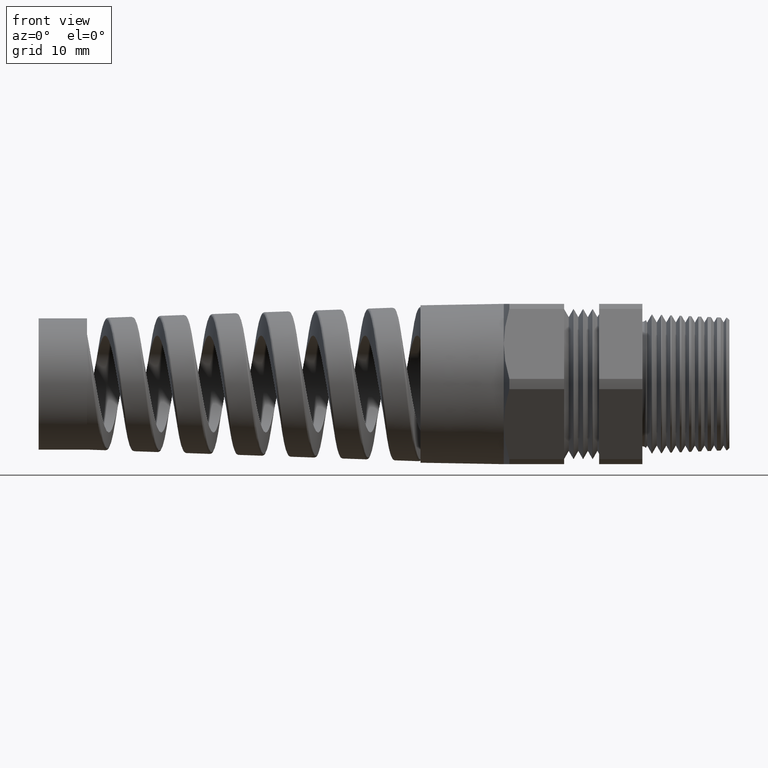
[diagram: clean part render]
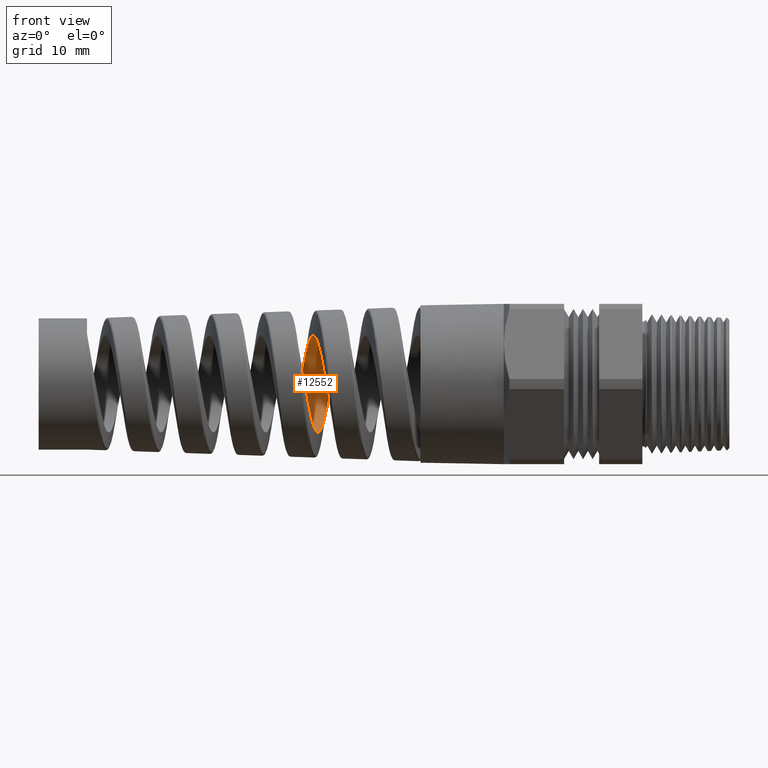
[diagram: same view with one face highlighted and labeled with its STEP entity id]
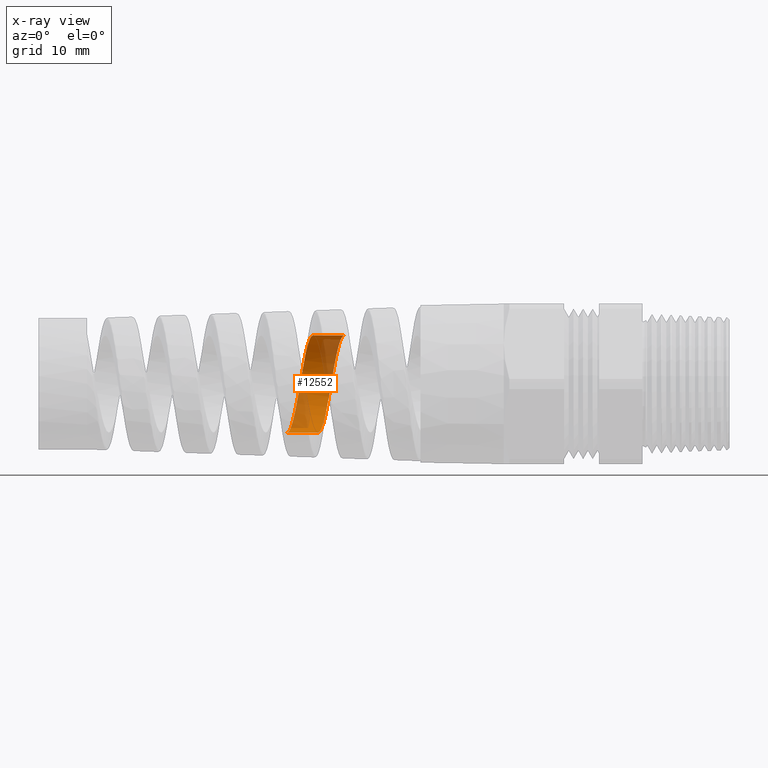
[diagram: x-ray of the same camera — body ghosted, the highlighted face saturated]
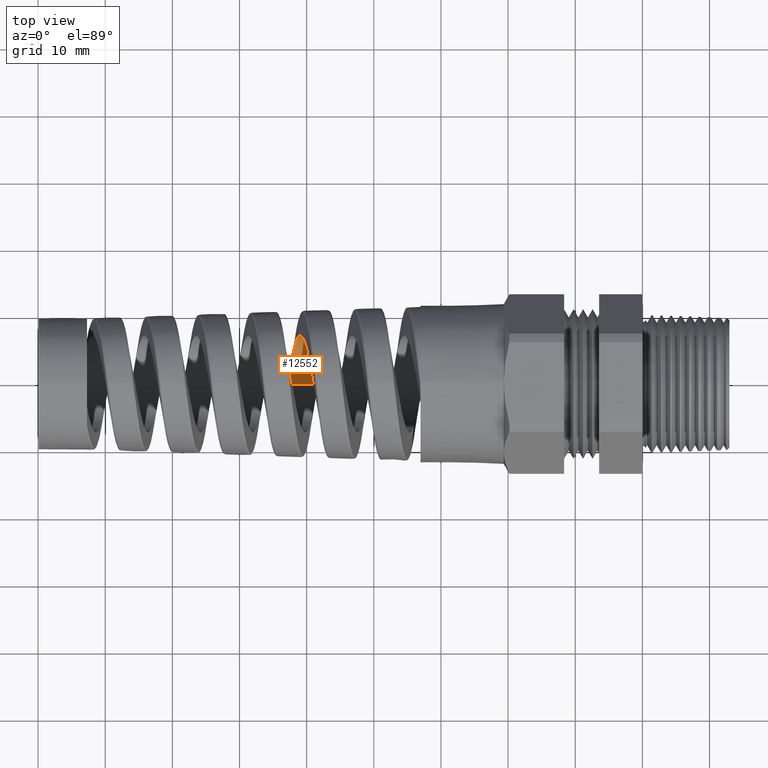
[diagram: same view with one face highlighted and labeled with its STEP entity id]
A machine part, front view. The second image highlights one B-rep face of the part: STEP entity #12552.
The next image is the same camera in x-ray: the body ghosted, the highlighted face saturated — about 39% of this face is hidden behind the body in this view.
A second angle (top view) of the same face is appended — the face is thin or edge-on in the first view.
In plain terms, the highlighted cylindrical surface (partial cylindrical patch) has radius 7.2293 mm, axis along (1, 0, 0).
Its self-contained STEP definition (entity closure, byte-faithful):
#149 = EDGE_CURVE ( 'NONE', #1259, #1275, #7874, .T. ) ;
#1256 = VERTEX_POINT ( 'NONE', #8765 ) ;
#1259 = VERTEX_POINT ( 'NONE', #8764 ) ;
#1275 = VERTEX_POINT ( 'NONE', #8928 ) ;
#1464 = EDGE_CURVE ( 'NONE', #1256, #1469, #9218, .T. ) ;
#1469 = VERTEX_POINT ( 'NONE', #9213 ) ;
#5703 = B_SPLINE_CURVE_WITH_KNOTS ( 'NONE', 3,
 ( #5791, #5790, #5789, #5788, #5787, #5786, #5785, #5784, #5783, #5782, #5781, #5780, #5779, #5778, #5777, #5776, #5775, #5774, #5773, #5772, #5771, #5770, #5769, #5768, #5767, #5766, #5765, #5764, #5763, #5762, #5761, #5760, #5759, #5758, #5757, #5756, #5755, #5754, #5753, #5752, #5751, #5750, #5749, #5748 ),
 .UNSPECIFIED., .F., .F.,
 ( 4, 2, 2, 2, 2, 2, 2, 2, 2, 2, 2, 2, 2, 2, 2, 2, 2, 2, 2, 2, 2, 4 ),
 ( 0.1758319309520384700, 0.1765455187327684100, 0.1772591065134983300, 0.1786862820749581800, 0.1801134576364180300, 0.1815406331978778900, 0.1822542209786078300, 0.1829678087593377700, 0.1843949843207976200, 0.1858221598822574800, 0.1865357476629873900, 0.1872493354437173300, 0.1886765110051771800, 0.1901036865666370100, 0.1915308621280968600, 0.1922444499088268000, 0.1929580376895567200, 0.1943852132510165700, 0.1958123888124764200, 0.1965259765932063400, 0.1972395643739362500, 0.1986667399353961000 ),
 .UNSPECIFIED. ) ;
#5748 = CARTESIAN_POINT ( 'NONE',  ( -1.930621841319687600, -4.215220111661508200E-013, 0.2846171090515574000 ) ) ;
#5749 = CARTESIAN_POINT ( 'NONE',  ( -1.933787621714666800, 0.01859337428168622900, 0.2846171090515846000 ) ) ;
#5750 = CARTESIAN_POINT ( 'NONE',  ( -1.936930694526824100, 0.03705399882800675100, 0.2828118607358189300 ) ) ;
#5751 = CARTESIAN_POINT ( 'NONE',  ( -1.941705730671687600, 0.06452709380771536100, 0.2773631465946411700 ) ) ;
#5752 = CARTESIAN_POINT ( 'NONE',  ( -1.943314577979848000, 0.07368717059567614400, 0.2750714815108119000 ) ) ;
#5753 = CARTESIAN_POINT ( 'NONE',  ( -1.946502480578012900, 0.09156116374734055200, 0.2696491652947990400 ) ) ;
#5754 = CARTESIAN_POINT ( 'NONE',  ( -1.948087794752337200, 0.1003120903073139600, 0.2665152409619312400 ) ) ;
#5755 = CARTESIAN_POINT ( 'NONE',  ( -1.952837535777425200, 0.1260153240085412400, 0.2558730121128450200 ) ) ;
#5756 = CARTESIAN_POINT ( 'NONE',  ( -1.955991774848976400, 0.1424239282295816400, 0.2471357288864469700 ) ) ;
#5757 = CARTESIAN_POINT ( 'NONE',  ( -1.962399580734167900, 0.1737059585386271100, 0.2262451851261307900 ) ) ;
#5758 = CARTESIAN_POINT ( 'NONE',  ( -1.965548765367026500, 0.1880650922525143000, 0.2144351260648445500 ) ) ;
#5759 = CARTESIAN_POINT ( 'NONE',  ( -1.970286764955651900, 0.2077443550071794700, 0.1947695627912600400 ) ) ;
#5760 = CARTESIAN_POINT ( 'NONE',  ( -1.971868402935804500, 0.2139921937259445500, 0.1878868270405659200 ) ) ;
#5761 = CARTESIAN_POINT ( 'NONE',  ( -1.975052161102736300, 0.2258489087315461700, 0.1734542855503532500 ) ) ;
#5762 = CARTESIAN_POINT ( 'NONE',  ( -1.976660659182973600, 0.2314753267310161500, 0.1658711430747003000 ) ) ;
#5763 = CARTESIAN_POINT ( 'NONE',  ( -1.981440141039867700, 0.2470343850366317800, 0.1425817950354413300 ) ) ;
#5764 = CARTESIAN_POINT ( 'NONE',  ( -1.984594211246161900, 0.2557739678562112600, 0.1262229868590250800 ) ) ;
#5765 = CARTESIAN_POINT ( 'NONE',  ( -1.990936422764682400, 0.2700209180423918100, 0.09187637816146063100 ) ) ;
#5766 = CARTESIAN_POINT ( 'NONE',  ( -1.994150357455131400, 0.2755284282760884200, 0.07373214129716765300 ) ) ;
#5767 = CARTESIAN_POINT ( 'NONE',  ( -2.000479823144212700, 0.2827773487972932200, 0.03727350876602573300 ) ) ;
#5768 = CARTESIAN_POINT ( 'NONE',  ( -2.003622517743243400, 0.2846086597124969400, 0.01881292467744640300 ) ) ;
#5769 = CARTESIAN_POINT ( 'NONE',  ( -2.008398835524991500, 0.2846212903678929700, -0.009214063844514973300 ) ) ;
#5770 = CARTESIAN_POINT ( 'NONE',  ( -2.010006871262501400, 0.2841590824637684800, -0.01864468277550392400 ) ) ;
#5771 = CARTESIAN_POINT ( 'NONE',  ( -2.013191581321769800, 0.2823271155938100200, -0.03722107122221689200 ) ) ;
#5772 = CARTESIAN_POINT ( 'NONE',  ( -2.014775875911280600, 0.2809605250183763700, -0.04641176530324615800 ) ) ;
#5773 = CARTESIAN_POINT ( 'NONE',  ( -2.019525127507381300, 0.2755358834009259400, -0.07369365625706576800 ) ) ;
#5774 = CARTESIAN_POINT ( 'NONE',  ( -2.022688917295996100, 0.2701529949750021100, -0.09152806415233086200 ) ) ;
#5775 = CARTESIAN_POINT ( 'NONE',  ( -2.029092906434542400, 0.2557741568098850800, -0.1262521600988634500 ) ) ;
#5776 = CARTESIAN_POINT ( 'NONE',  ( -2.032241277350288500, 0.2469958822314302900, -0.1426325365935098000 ) ) ;
#5777 = CARTESIAN_POINT ( 'NONE',  ( -2.036979212303124500, 0.2315434329978179900, -0.1657726282980086500 ) ) ;
#5778 = CARTESIAN_POINT ( 'NONE',  ( -2.038561020944562200, 0.2260090639366821000, -0.1732458986114386300 ) ) ;
#5779 = CARTESIAN_POINT ( 'NONE',  ( -2.041745750587853300, 0.2141572309276327800, -0.1876990112084469000 ) ) ;
#5780 = CARTESIAN_POINT ( 'NONE',  ( -2.043353218194016800, 0.2078174196246580500, -0.1946943121294328100 ) ) ;
#5781 = CARTESIAN_POINT ( 'NONE',  ( -2.048127848377216100, 0.1880211149972648200, -0.2144835292524911200 ) ) ;
#5782 = CARTESIAN_POINT ( 'NONE',  ( -2.051280678624139300, 0.1736830061238044700, -0.2262455585628055700 ) ) ;
#5783 = CARTESIAN_POINT ( 'NONE',  ( -2.057629568958259500, 0.1427617277241561000, -0.2469249450396036300 ) ) ;
#5784 = CARTESIAN_POINT ( 'NONE',  ( -2.060844010862679100, 0.1260412917700498800, -0.2558626310906986800 ) ) ;
#5785 = CARTESIAN_POINT ( 'NONE',  ( -2.067172125588561100, 0.09170868034186906200, -0.2700770467286523500 ) ) ;
#5786 = CARTESIAN_POINT ( 'NONE',  ( -2.070314917260279900, 0.07395727302998360300, -0.2754756359437939300 ) ) ;
#5787 = CARTESIAN_POINT ( 'NONE',  ( -2.075092899333705000, 0.04645141525234482100, -0.2809565200397937100 ) ) ;
#5788 = CARTESIAN_POINT ( 'NONE',  ( -2.076699699720698800, 0.03711462389563677900, -0.2823409425687005700 ) ) ;
#5789 = CARTESIAN_POINT ( 'NONE',  ( -2.079881167721395800, 0.01854880162406601800, -0.2841651722428488200 ) ) ;
#5790 = CARTESIAN_POINT ( 'NONE',  ( -2.081464321334574500, 0.009271197500267381500, -0.2846171090515573500 ) ) ;
#5791 = CARTESIAN_POINT ( 'NONE',  ( -2.083046997186873000, 1.651914333668859200E-015, -0.2846171090515571800 ) ) ;
#5835 = CARTESIAN_POINT ( 'NONE',  ( -1.751529023460431900, 0.01870380677135531300, 0.2846171090516120800 ) ) ;
#5836 = CARTESIAN_POINT ( 'NONE',  ( -1.748321564227292500, -8.329212449620283700E-013, 0.2846171090515572400 ) ) ;
#5837 = B_SPLINE_CURVE_WITH_KNOTS ( 'NONE', 3,
 ( #5836, #5835, #5906, #5905, #5904, #5903, #5902, #5901, #5900, #5899, #5898, #5897, #5896, #5895, #5894, #5893, #5892, #5891, #5890, #5889, #5888, #5887, #5886, #5885, #5884, #5883, #5882, #5881, #5880, #5879, #5878, #5877, #5876, #5875, #5874, #5873, #5872, #5871, #5870, #5869, #5868, #5867 ),
 .UNSPECIFIED., .F., .F.,
 ( 4, 2, 2, 2, 2, 2, 2, 2, 2, 2, 2, 2, 2, 2, 2, 2, 2, 2, 2, 2, 4 ),
 ( 0.1002275965019712700, 0.1016609450372899700, 0.1030942935726086400, 0.1045276421079273400, 0.1052443163755866800, 0.1059609906432460200, 0.1073943391785647100, 0.1088276877138834000, 0.1095443619815427400, 0.1102610362492020800, 0.1116943847845207800, 0.1131277333198394700, 0.1145610818551581500, 0.1152777561228175000, 0.1159944303904768400, 0.1174277789257955300, 0.1188611274611142100, 0.1195778017287735500, 0.1202944759964329100, 0.1217278245317516000, 0.1231611730670702800 ),
 .UNSPECIFIED. ) ;
#5867 = CARTESIAN_POINT ( 'NONE',  ( -1.901679825330007100, 5.639697428576591500E-013, -0.2846171090515572900 ) ) ;
#5868 = CARTESIAN_POINT ( 'NONE',  ( -1.898492863854495300, 0.01858914454036396700, -0.2846171090515199900 ) ) ;
#5869 = CARTESIAN_POINT ( 'NONE',  ( -1.895261013609806500, 0.03745787613838481200, -0.2827530084155389100 ) ) ;
#5870 = CARTESIAN_POINT ( 'NONE',  ( -1.888892922102755300, 0.07391244141575546700, -0.2754801394961147700 ) ) ;
#5871 = CARTESIAN_POINT ( 'NONE',  ( -1.885729086699996900, 0.09166341858106325000, -0.2700992867675282000 ) ) ;
#5872 = CARTESIAN_POINT ( 'NONE',  ( -1.880919912189881000, 0.1175491614877167100, -0.2593767924502072800 ) ) ;
#5873 = CARTESIAN_POINT ( 'NONE',  ( -1.879300274610509900, 0.1260826463520277600, -0.2553373973036702800 ) ) ;
#5874 = CARTESIAN_POINT ( 'NONE',  ( -1.876092960258951300, 0.1425410875210642600, -0.2465280076203415500 ) ) ;
#5875 = CARTESIAN_POINT ( 'NONE',  ( -1.874497945657589000, 0.1505070423270545600, -0.2417446795466621200 ) ) ;
#5876 = CARTESIAN_POINT ( 'NONE',  ( -1.869720369998931300, 0.1736281748574032300, -0.2262830089019363100 ) ) ;
#5877 = CARTESIAN_POINT ( 'NONE',  ( -1.866544786499730200, 0.1880307234153570700, -0.2144868667975444200 ) ) ;
#5878 = CARTESIAN_POINT ( 'NONE',  ( -1.860104240358100300, 0.2146033164434471300, -0.1878978061292993800 ) ) ;
#5879 = CARTESIAN_POINT ( 'NONE',  ( -1.856937317099940800, 0.2263713565346466000, -0.1735134443105826900 ) ) ;
#5880 = CARTESIAN_POINT ( 'NONE',  ( -1.852168645198924100, 0.2418245965857891100, -0.1503787390681751700 ) ) ;
#5881 = CARTESIAN_POINT ( 'NONE',  ( -1.850576182477991800, 0.2466066188358639300, -0.1424056084882048800 ) ) ;
#5882 = CARTESIAN_POINT ( 'NONE',  ( -1.847369769799383400, 0.2554146124866285600, -0.1259267942530830900 ) ) ;
#5883 = CARTESIAN_POINT ( 'NONE',  ( -1.845750617320129500, 0.2594479756189734800, -0.1173913001989112200 ) ) ;
#5884 = CARTESIAN_POINT ( 'NONE',  ( -1.840941619837723100, 0.2701458836856090500, -0.09152258133281027100 ) ) ;
#5885 = CARTESIAN_POINT ( 'NONE',  ( -1.837768793259501700, 0.2755179865852358500, -0.07377364086130248900 ) ) ;
#5886 = CARTESIAN_POINT ( 'NONE',  ( -1.831390283040652100, 0.2827749733115587600, -0.03729645407490903700 ) ) ;
#5887 = CARTESIAN_POINT ( 'NONE',  ( -1.828157816576984300, 0.2846269919587900400, -0.01842814583175394000 ) ) ;
#5888 = CARTESIAN_POINT ( 'NONE',  ( -1.821792408247707500, 0.2846071449562965200, 0.01873216885817279700 ) ) ;
#5889 = CARTESIAN_POINT ( 'NONE',  ( -1.818629468589197500, 0.2827946356096743300, 0.03719480593825135600 ) ) ;
#5890 = CARTESIAN_POINT ( 'NONE',  ( -1.813819380183821200, 0.2773248500099401700, 0.06469286297739408600 ) ) ;
#5891 = CARTESIAN_POINT ( 'NONE',  ( -1.812200834255451900, 0.2750279101014718700, 0.07384828123983883100 ) ) ;
#5892 = CARTESIAN_POINT ( 'NONE',  ( -1.808996236469421400, 0.2696019908525527600, 0.09169889042513912300 ) ) ;
#5893 = CARTESIAN_POINT ( 'NONE',  ( -1.807401889596336000, 0.2664661342854604000, 0.1004422307647479700 ) ) ;
#5894 = CARTESIAN_POINT ( 'NONE',  ( -1.802623298243841700, 0.2558144714509318900, 0.1261333804741073000 ) ) ;
#5895 = CARTESIAN_POINT ( 'NONE',  ( -1.799438785111335800, 0.2470368177689334100, 0.1425916767029202800 ) ) ;
#5896 = CARTESIAN_POINT ( 'NONE',  ( -1.793002059743838100, 0.2261596252092348300, 0.1738142673187957100 ) ) ;
#5897 = CARTESIAN_POINT ( 'NONE',  ( -1.789836205141962500, 0.2143528628175802900, 0.1881591590202467400 ) ) ;
#5898 = CARTESIAN_POINT ( 'NONE',  ( -1.785068226014289600, 0.1946751258157944100, 0.2078329237454423800 ) ) ;
#5899 = CARTESIAN_POINT ( 'NONE',  ( -1.783475805901192600, 0.1877856181777066100, 0.2140814305937753000 ) ) ;
#5900 = CARTESIAN_POINT ( 'NONE',  ( -1.780268735982374600, 0.1733322902088407500, 0.2259429452105533300 ) ) ;
#5901 = CARTESIAN_POINT ( 'NONE',  ( -1.778650909044291700, 0.1657499738250423900, 0.2315616937167560800 ) ) ;
#5902 = CARTESIAN_POINT ( 'NONE',  ( -1.773846208928178300, 0.1424786195965054300, 0.2470923591355593000 ) ) ;
#5903 = CARTESIAN_POINT ( 'NONE',  ( -1.770672609188763900, 0.1261211867883027800, 0.2558249873683228800 ) ) ;
#5904 = CARTESIAN_POINT ( 'NONE',  ( -1.764287186427846000, 0.09174783052420816500, 0.2700653874767993100 ) ) ;
#5905 = CARTESIAN_POINT ( 'NONE',  ( -1.761055073689547600, 0.07360654630014575000, 0.2755612053293701200 ) ) ;
#5906 = CARTESIAN_POINT ( 'NONE',  ( -1.754691497090321400, 0.03716824874387489300, 0.2827904220905018700 ) ) ;
#6970 = DIRECTION ( 'NONE',  ( 0.0000000000000000000, 0.0000000000000000000, -1.000000000000000000 ) ) ;
#6971 = DIRECTION ( 'NONE',  ( 1.000000000000000000, 0.0000000000000000000, 0.0000000000000000000 ) ) ;
#6972 = AXIS2_PLACEMENT_3D ( 'NONE', #6979, #6971, #6970 ) ;
#6973 = CYLINDRICAL_SURFACE ( 'NONE', #6972, 0.2846171090515572400 ) ;
#6974 = FACE_OUTER_BOUND ( 'NONE', #7266, .T. ) ;
#6979 = CARTESIAN_POINT ( 'NONE',  ( 0.4924815508901369000, 0.0000000000000000000, 0.0000000000000000000 ) ) ;
#7245 = ORIENTED_EDGE ( 'NONE', *, *, #7531, .F. ) ;
#7262 = ORIENTED_EDGE ( 'NONE', *, *, #7455, .F. ) ;
#7266 = EDGE_LOOP ( 'NONE', ( #12545, #7262, #7272, #7245 ) ) ;
#7272 = ORIENTED_EDGE ( 'NONE', *, *, #149, .T. ) ;
#7455 = EDGE_CURVE ( 'NONE', #1259, #1256, #5703, .T. ) ;
#7531 = EDGE_CURVE ( 'NONE', #1469, #1275, #5837, .T. ) ;
#7871 = DIRECTION ( 'NONE',  ( 1.000000000000000000, 0.0000000000000000000, 0.0000000000000000000 ) ) ;
#7872 = VECTOR ( 'NONE', #7871, 39.37007874015748100 ) ;
#7873 = CARTESIAN_POINT ( 'NONE',  ( 0.4924815508901369000, 0.0000000000000000000, -0.2846171090515572400 ) ) ;
#7874 = LINE ( 'NONE', #7873, #7872 ) ;
#8764 = CARTESIAN_POINT ( 'NONE',  ( -2.083046997186873000, 1.651914333668859200E-015, -0.2846171090515571800 ) ) ;
#8765 = CARTESIAN_POINT ( 'NONE',  ( -1.930621841319687600, -4.215220111661508200E-013, 0.2846171090515574000 ) ) ;
#8928 = CARTESIAN_POINT ( 'NONE',  ( -1.901679825330007100, 5.639697428576591500E-013, -0.2846171090515572900 ) ) ;
#9213 = CARTESIAN_POINT ( 'NONE',  ( -1.748321564227292500, -8.329212449620283700E-013, 0.2846171090515572400 ) ) ;
#9215 = DIRECTION ( 'NONE',  ( 1.000000000000000000, 0.0000000000000000000, 0.0000000000000000000 ) ) ;
#9216 = VECTOR ( 'NONE', #9215, 39.37007874015748100 ) ;
#9217 = CARTESIAN_POINT ( 'NONE',  ( 0.4924815508901369000, 3.485554315825627000E-017, 0.2846171090515572400 ) ) ;
#9218 = LINE ( 'NONE', #9217, #9216 ) ;
#12545 = ORIENTED_EDGE ( 'NONE', *, *, #1464, .F. ) ;
#12552 = ADVANCED_FACE ( 'NONE', ( #6974 ), #6973, .F. ) ;